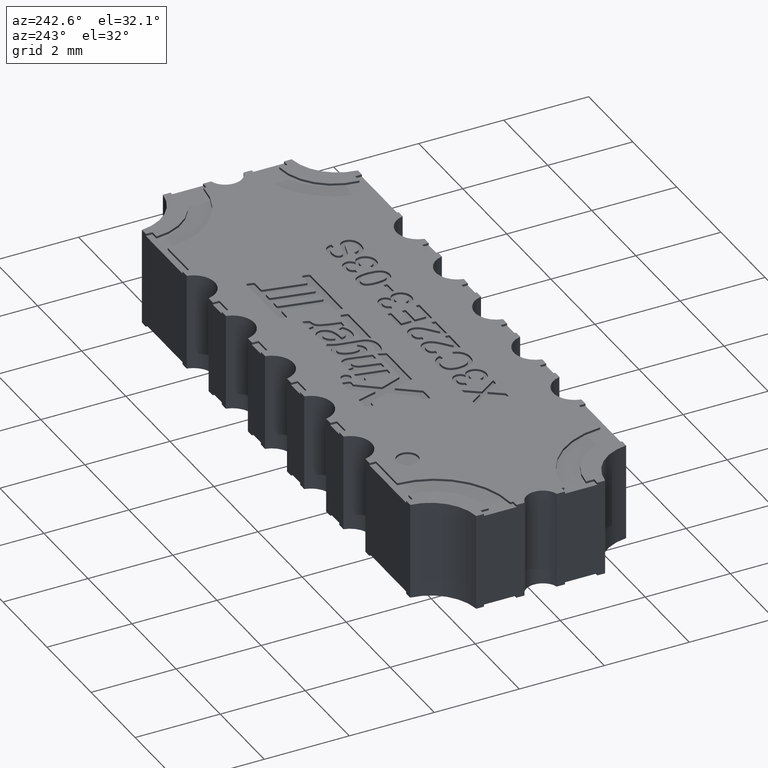
[diagram: clean part render]
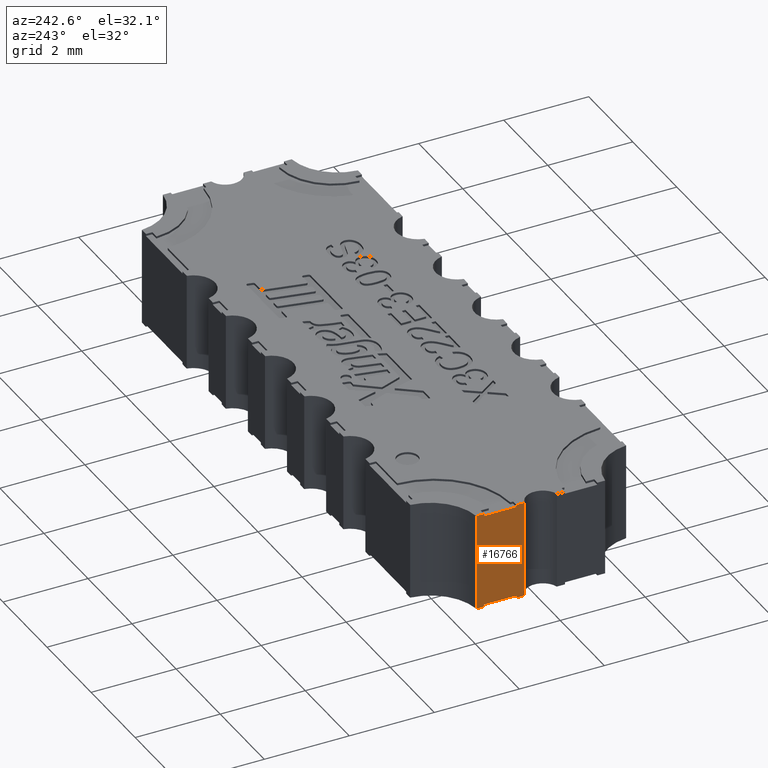
[diagram: same view with one face highlighted and labeled with its STEP entity id]
A machine part, auxiliary view. The second image highlights one B-rep face of the part: STEP entity #16766.
In plain terms, the highlighted planar face has unit normal (1, 0, -0).
Its self-contained STEP definition (entity closure, byte-faithful):
#17 = EDGE_LOOP ( 'NONE', ( #12107, #22656, #15505, #18255, #6306, #1133, #18592, #9790, #16114, #12621, #14924, #7150 ) ) ;
#69 = CARTESIAN_POINT ( 'NONE',  ( -0.2800000583921981590, 0.05250000000570970160, 0.08800000000000000877 ) ) ;
#566 = VERTEX_POINT ( 'NONE', #16790 ) ;
#638 = DIRECTION ( 'NONE',  ( -0.000000000000000000, -0.000000000000000000, -1.000000000000000000 ) ) ;
#871 = VECTOR ( 'NONE', #8844, 39.37007874015748143 ) ;
#983 = EDGE_CURVE ( 'NONE', #18683, #5803, #14163, .T. ) ;
#1120 = EDGE_CURVE ( 'NONE', #18606, #20736, #17058, .T. ) ;
#1133 = ORIENTED_EDGE ( 'NONE', *, *, #2985, .T. ) ;
#1414 = EDGE_CURVE ( 'NONE', #11704, #19626, #5976, .T. ) ;
#1538 = LINE ( 'NONE', #8637, #13857 ) ;
#1863 = EDGE_CURVE ( 'NONE', #11704, #8959, #12948, .T. ) ;
#2846 = VECTOR ( 'NONE', #7514, 39.37007874015748143 ) ;
#2985 = EDGE_CURVE ( 'NONE', #9583, #19626, #5352, .T. ) ;
#3076 = CARTESIAN_POINT ( 'NONE',  ( -0.2800000583921981590, 0.01497497913800655001, 0.002000000000000000042 ) ) ;
#3728 = CARTESIAN_POINT ( 'NONE',  ( -0.2800000583921981590, 0.05968013989509574069, 0.000000000000000000 ) ) ;
#3819 = CARTESIAN_POINT ( 'NONE',  ( -0.2800000583921981590, 0.02249999999860315472, 0.08800000000000000877 ) ) ;
#4065 = CARTESIAN_POINT ( 'NONE',  ( -0.2800000583921981590, 0.05250000000570970160, 0.002000000000000000042 ) ) ;
#5352 = LINE ( 'NONE', #3728, #17262 ) ;
#5438 = CARTESIAN_POINT ( 'NONE',  ( -0.2800000583921981590, 0.1040000000014028592, 0.09000000000000001055 ) ) ;
#5554 = DIRECTION ( 'NONE',  ( -0.000000000000000000, -0.000000000000000000, 1.000000000000000000 ) ) ;
#5736 = CARTESIAN_POINT ( 'NONE',  ( -0.2800000583921981590, 0.02249999999860313737, 0.002000000000000000042 ) ) ;
#5803 = VERTEX_POINT ( 'NONE', #13571 ) ;
#5956 = LINE ( 'NONE', #5736, #19416 ) ;
#5976 = LINE ( 'NONE', #16356, #20186 ) ;
#6306 = ORIENTED_EDGE ( 'NONE', *, *, #12662, .T. ) ;
#6948 = VECTOR ( 'NONE', #638, 39.37007874015748143 ) ;
#7150 = ORIENTED_EDGE ( 'NONE', *, *, #17662, .T. ) ;
#7402 = CARTESIAN_POINT ( 'NONE',  ( -0.2800000583921981590, 0.05250000000570970160, 0.000000000000000000 ) ) ;
#7448 = EDGE_CURVE ( 'NONE', #8959, #15442, #5956, .T. ) ;
#7514 = DIRECTION ( 'NONE',  ( 0.000000000000000000, 1.000000000000000000, 0.000000000000000000 ) ) ;
#7623 = DIRECTION ( 'NONE',  ( 0.000000000000000000, 0.000000000000000000, -1.000000000000000000 ) ) ;
#8637 = CARTESIAN_POINT ( 'NONE',  ( -0.2800000583921981590, 0.1040000000014028592, 0.09000000000000001055 ) ) ;
#8812 = DIRECTION ( 'NONE',  ( -0.000000000000000000, 1.000000000000000000, 0.000000000000000000 ) ) ;
#8844 = DIRECTION ( 'NONE',  ( -0.000000000000000000, -0.000000000000000000, 1.000000000000000000 ) ) ;
#8959 = VERTEX_POINT ( 'NONE', #12875 ) ;
#9031 = AXIS2_PLACEMENT_3D ( 'NONE', #11850, #16965, #17083 ) ;
#9258 = CARTESIAN_POINT ( 'NONE',  ( -0.2800000583921981590, 0.05968013989509574069, 0.002000000000000000042 ) ) ;
#9583 = VERTEX_POINT ( 'NONE', #19650 ) ;
#9790 = ORIENTED_EDGE ( 'NONE', *, *, #1863, .T. ) ;
#10536 = VERTEX_POINT ( 'NONE', #12824 ) ;
#10596 = CARTESIAN_POINT ( 'NONE',  ( -0.2800000583921981590, 0.02249999999860315472, 0.08800000000000000877 ) ) ;
#11135 = CARTESIAN_POINT ( 'NONE',  ( -0.2800000583921981590, 0.1040000000014028592, 0.08800000000000000877 ) ) ;
#11658 = CARTESIAN_POINT ( 'NONE',  ( -0.2800000583921981590, 0.05250000000570970160, 0.08800000000000000877 ) ) ;
#11704 = VERTEX_POINT ( 'NONE', #4065 ) ;
#11850 = CARTESIAN_POINT ( 'NONE',  ( -0.2800000583921981590, 0.05968013989509574069, 0.002000000000000000042 ) ) ;
#12107 = ORIENTED_EDGE ( 'NONE', *, *, #17370, .F. ) ;
#12411 = LINE ( 'NONE', #11135, #2846 ) ;
#12452 = LINE ( 'NONE', #10596, #871 ) ;
#12621 = ORIENTED_EDGE ( 'NONE', *, *, #21598, .T. ) ;
#12662 = EDGE_CURVE ( 'NONE', #566, #9583, #16365, .T. ) ;
#12824 = CARTESIAN_POINT ( 'NONE',  ( -0.2800000583921981590, 0.02249999999860315472, 0.09000000000000001055 ) ) ;
#12875 = CARTESIAN_POINT ( 'NONE',  ( -0.2800000583921981590, 0.02249999999860313737, 0.002000000000000000042 ) ) ;
#12948 = LINE ( 'NONE', #16553, #16500 ) ;
#13145 = VECTOR ( 'NONE', #8812, 39.37007874015748143 ) ;
#13571 = CARTESIAN_POINT ( 'NONE',  ( -0.2800000583921981590, 0.05250000000570970160, 0.09000000000000001055 ) ) ;
#13857 = VECTOR ( 'NONE', #20975, 39.37007874015748143 ) ;
#14163 = LINE ( 'NONE', #69, #22206 ) ;
#14415 = VECTOR ( 'NONE', #20672, 39.37007874015748143 ) ;
#14697 = DIRECTION ( 'NONE',  ( 0.000000000000000000, 0.000000000000000000, -1.000000000000000000 ) ) ;
#14731 = CARTESIAN_POINT ( 'NONE',  ( -0.2800000583921981590, 0.01497497913800655001, 0.000000000000000000 ) ) ;
#14924 = ORIENTED_EDGE ( 'NONE', *, *, #1120, .F. ) ;
#15216 = LINE ( 'NONE', #22084, #14415 ) ;
#15442 = VERTEX_POINT ( 'NONE', #21888 ) ;
#15505 = ORIENTED_EDGE ( 'NONE', *, *, #983, .T. ) ;
#15718 = DIRECTION ( 'NONE',  ( 0.000000000000000000, -1.000000000000000000, 0.000000000000000000 ) ) ;
#16038 = LINE ( 'NONE', #5438, #13145 ) ;
#16114 = ORIENTED_EDGE ( 'NONE', *, *, #7448, .T. ) ;
#16356 = CARTESIAN_POINT ( 'NONE',  ( -0.2800000583921981590, 0.05250000000570970160, 0.002000000000000000042 ) ) ;
#16365 = LINE ( 'NONE', #9258, #6948 ) ;
#16500 = VECTOR ( 'NONE', #20036, 39.37007874015748143 ) ;
#16553 = CARTESIAN_POINT ( 'NONE',  ( -0.2800000583921981590, 0.02249999999860313737, 0.002000000000000000042 ) ) ;
#16766 = ADVANCED_FACE ( 'NONE', ( #20447 ), #18820, .F. ) ;
#16790 = CARTESIAN_POINT ( 'NONE',  ( -0.2800000583921981590, 0.05968013989509574763, 0.09000000000000001055 ) ) ;
#16965 = DIRECTION ( 'NONE',  ( 1.000000000000000000, 0.000000000000000000, -0.000000000000000000 ) ) ;
#17058 = LINE ( 'NONE', #3076, #20549 ) ;
#17083 = DIRECTION ( 'NONE',  ( -0.000000000000000000, 0.000000000000000000, -1.000000000000000000 ) ) ;
#17262 = VECTOR ( 'NONE', #15718, 39.37007874015748143 ) ;
#17370 = EDGE_CURVE ( 'NONE', #20333, #10536, #12452, .T. ) ;
#17404 = DIRECTION ( 'NONE',  ( -0.000000000000000000, -0.000000000000000000, -1.000000000000000000 ) ) ;
#17662 = EDGE_CURVE ( 'NONE', #18606, #10536, #16038, .T. ) ;
#18255 = ORIENTED_EDGE ( 'NONE', *, *, #18411, .T. ) ;
#18411 = EDGE_CURVE ( 'NONE', #5803, #566, #1538, .T. ) ;
#18592 = ORIENTED_EDGE ( 'NONE', *, *, #1414, .F. ) ;
#18606 = VERTEX_POINT ( 'NONE', #19309 ) ;
#18683 = VERTEX_POINT ( 'NONE', #11658 ) ;
#18820 = PLANE ( 'NONE',  #9031 ) ;
#19309 = CARTESIAN_POINT ( 'NONE',  ( -0.2800000583921981590, 0.01497497913800654827, 0.09000000000000001055 ) ) ;
#19416 = VECTOR ( 'NONE', #14697, 39.37007874015748143 ) ;
#19626 = VERTEX_POINT ( 'NONE', #7402 ) ;
#19650 = CARTESIAN_POINT ( 'NONE',  ( -0.2800000583921981590, 0.05968013989509574069, 0.000000000000000000 ) ) ;
#20036 = DIRECTION ( 'NONE',  ( -0.000000000000000000, -1.000000000000000000, -0.000000000000000000 ) ) ;
#20186 = VECTOR ( 'NONE', #7623, 39.37007874015748143 ) ;
#20333 = VERTEX_POINT ( 'NONE', #3819 ) ;
#20447 = FACE_OUTER_BOUND ( 'NONE', #17, .T. ) ;
#20549 = VECTOR ( 'NONE', #17404, 39.37007874015748143 ) ;
#20672 = DIRECTION ( 'NONE',  ( 0.000000000000000000, -1.000000000000000000, 0.000000000000000000 ) ) ;
#20736 = VERTEX_POINT ( 'NONE', #14731 ) ;
#20742 = EDGE_CURVE ( 'NONE', #20333, #18683, #12411, .T. ) ;
#20975 = DIRECTION ( 'NONE',  ( -0.000000000000000000, 1.000000000000000000, 0.000000000000000000 ) ) ;
#21598 = EDGE_CURVE ( 'NONE', #15442, #20736, #15216, .T. ) ;
#21888 = CARTESIAN_POINT ( 'NONE',  ( -0.2800000583921981590, 0.02249999999860313737, 0.000000000000000000 ) ) ;
#22084 = CARTESIAN_POINT ( 'NONE',  ( -0.2800000583921981590, 0.05968013989509574069, 0.000000000000000000 ) ) ;
#22206 = VECTOR ( 'NONE', #5554, 39.37007874015748143 ) ;
#22656 = ORIENTED_EDGE ( 'NONE', *, *, #20742, .T. ) ;